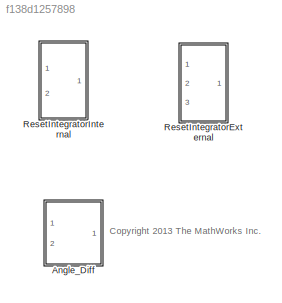
MODEL slx_f138d1257898
KIND library
CONFIG AbsTol = auto
CONFIG FixedStep = auto
CONFIG MaxStep = auto
CONFIG MinStep = auto
CONFIG RelTol = 1e-3
CONFIG SampleTimeConstraint = Unconstrained
CONFIG Solver = ode45
CONFIG SolverMode = Auto
CONFIG SolverName = ode45
CONFIG StartTime = 0.0
CONFIG StopTime = 10.0
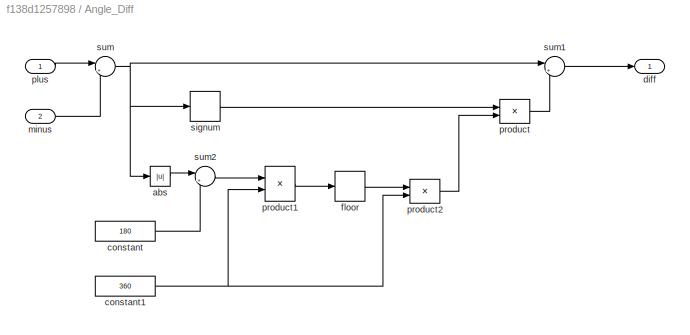
BLOCK [SubSystem] Angle_Diff
  AttributesFormatString = -180 deg to +180 deg range
  Ports = [2, 1]
  RequestExecContextInheritance = off
  Variant = off
BLOCK [Abs] Angle_Diff/abs
  SaturateOnIntegerOverflow = off
  ZeroCross = off
BLOCK [Constant] Angle_Diff/constant
  Value = 180
BLOCK [Constant] Angle_Diff/constant1
  Value = 360
BLOCK [Outport] Angle_Diff/diff
  IconDisplay = Port number
BLOCK [Rounding] Angle_Diff/floor
BLOCK [Inport] Angle_Diff/minus
  IconDisplay = Port number
  OutDataTypeStr = double
  Port = 2
BLOCK [Inport] Angle_Diff/plus
  IconDisplay = Port number
  OutDataTypeStr = double
BLOCK [Product] Angle_Diff/product
  Ports = [2, 1]
  SaturateOnIntegerOverflow = off
BLOCK [Product] Angle_Diff/product1
  Inputs = */
  Ports = [2, 1]
  SaturateOnIntegerOverflow = off
BLOCK [Product] Angle_Diff/product2
  Ports = [2, 1]
  SaturateOnIntegerOverflow = off
BLOCK [Signum] Angle_Diff/signum
  ZeroCross = off
BLOCK [Sum] Angle_Diff/sum
  AccumDataTypeStr = Inherit: Same as first input
  IconShape = round
  Inputs = |+-
  Ports = [2, 1]
  RndMeth = Zero
  SaturateOnIntegerOverflow = off
BLOCK [Sum] Angle_Diff/sum1
  AccumDataTypeStr = Inherit: Same as first input
  IconShape = round
  Inputs = |+-
  Ports = [2, 1]
  RndMeth = Zero
  SaturateOnIntegerOverflow = off
BLOCK [Sum] Angle_Diff/sum2
  AccumDataTypeStr = Inherit: Same as first input
  IconShape = round
  Inputs = |++
  Ports = [2, 1]
  RndMeth = Zero
  SaturateOnIntegerOverflow = off
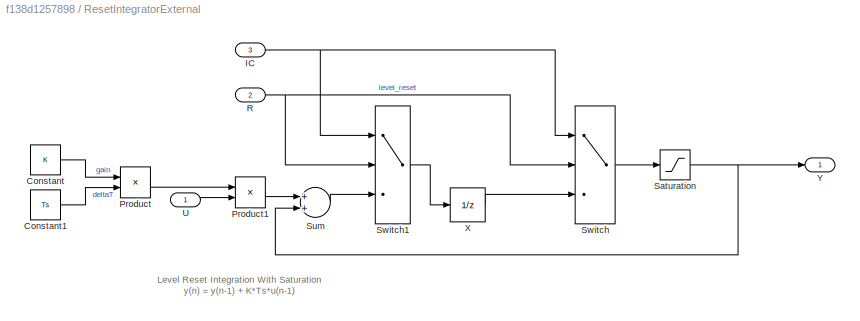
BLOCK [SubSystem] ResetIntegratorExternal
  AttributesFormatString = K = %<K>\n-%<UL> to %<UL>
  Ports = [3, 1]
  RequestExecContextInheritance = off
  Variant = off
BLOCK [Constant] ResetIntegratorExternal/Constant
  Value = K
BLOCK [Constant] ResetIntegratorExternal/Constant1
  Value = Ts
BLOCK [Inport] ResetIntegratorExternal/IC
  IconDisplay = Port number
  Port = 3
BLOCK [Product] ResetIntegratorExternal/Product
  InputSameDT = off
  OutDataTypeStr = Inherit: Inherit via internal rule
  Ports = [2, 1]
  SaturateOnIntegerOverflow = off
BLOCK [Product] ResetIntegratorExternal/Product1
  InputSameDT = off
  OutDataTypeStr = Inherit: Inherit via internal rule
  Ports = [2, 1]
  SaturateOnIntegerOverflow = off
BLOCK [Inport] ResetIntegratorExternal/R
  IconDisplay = Port number
  Port = 2
BLOCK [Saturate] ResetIntegratorExternal/Saturation
  InputPortMap = u0
  LowerLimit = -UL
  Ports = [1, 1]
  UpperLimit = UL
BLOCK [Sum] ResetIntegratorExternal/Sum
  InputSameDT = off
  OutDataTypeStr = Inherit: Inherit via internal rule
  Ports = [2, 1]
  SaturateOnIntegerOverflow = off
BLOCK [Switch] ResetIntegratorExternal/Switch
  Criteria = u2 ~= 0
  InputSameDT = off
  SaturateOnIntegerOverflow = off
BLOCK [Switch] ResetIntegratorExternal/Switch1
  Criteria = u2 ~= 0
  InputSameDT = off
  SaturateOnIntegerOverflow = off
BLOCK [Inport] ResetIntegratorExternal/U
  IconDisplay = Port number
BLOCK [UnitDelay] ResetIntegratorExternal/X
  InputProcessing = Elements as channels (sample based)
  SampleTime = Ts
BLOCK [Outport] ResetIntegratorExternal/Y
  IconDisplay = Port number
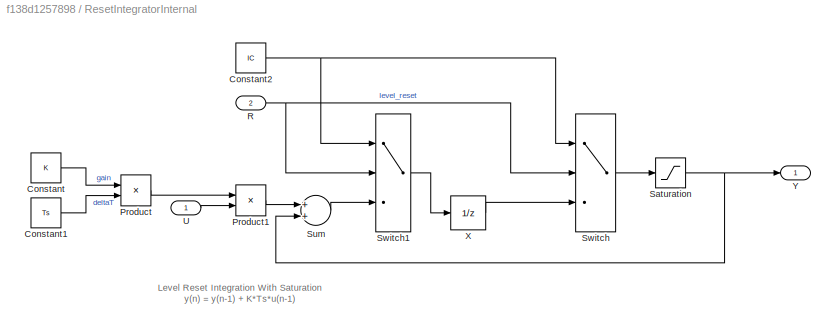
BLOCK [SubSystem] ResetIntegratorInternal
  AttributesFormatString = K =  %<K>\n-%<UL> to %<UL>\nIC = %<IC>
  Ports = [2, 1]
  RequestExecContextInheritance = off
  Variant = off
BLOCK [Constant] ResetIntegratorInternal/Constant
  Value = K
BLOCK [Constant] ResetIntegratorInternal/Constant1
  Value = Ts
BLOCK [Constant] ResetIntegratorInternal/Constant2
  Value = IC
BLOCK [Product] ResetIntegratorInternal/Product
  InputSameDT = off
  OutDataTypeStr = Inherit: Inherit via internal rule
  Ports = [2, 1]
  SaturateOnIntegerOverflow = off
BLOCK [Product] ResetIntegratorInternal/Product1
  InputSameDT = off
  OutDataTypeStr = Inherit: Inherit via internal rule
  Ports = [2, 1]
  SaturateOnIntegerOverflow = off
BLOCK [Inport] ResetIntegratorInternal/R
  IconDisplay = Port number
  Port = 2
BLOCK [Saturate] ResetIntegratorInternal/Saturation
  InputPortMap = u0
  LowerLimit = -UL
  Ports = [1, 1]
  UpperLimit = UL
BLOCK [Sum] ResetIntegratorInternal/Sum
  InputSameDT = off
  OutDataTypeStr = Inherit: Inherit via internal rule
  Ports = [2, 1]
  SaturateOnIntegerOverflow = off
BLOCK [Switch] ResetIntegratorInternal/Switch
  Criteria = u2 ~= 0
  InputSameDT = off
  SaturateOnIntegerOverflow = off
BLOCK [Switch] ResetIntegratorInternal/Switch1
  Criteria = u2 ~= 0
  InputSameDT = off
  SaturateOnIntegerOverflow = off
BLOCK [Inport] ResetIntegratorInternal/U
  IconDisplay = Port number
BLOCK [UnitDelay] ResetIntegratorInternal/X
  InitialCondition = IC
  InputProcessing = Elements as channels (sample based)
  SampleTime = Ts
BLOCK [Outport] ResetIntegratorInternal/Y
  IconDisplay = Port number
ANNOTATION (root): <copyright redacted>
ANNOTATION ResetIntegratorExternal: Level Reset Integration With Saturation y(n) = y(n-1) + K*Ts*u(n-1)
ANNOTATION ResetIntegratorInternal: Level Reset Integration With Saturation y(n) = y(n-1) + K*Ts*u(n-1)
LINE Angle_Diff/abs:1 -> Angle_Diff/sum2:1
NET Angle_Diff/constant1:1 -> Angle_Diff/product1:2, Angle_Diff/product2:2
LINE Angle_Diff/constant:1 -> Angle_Diff/sum2:2
LINE Angle_Diff/floor:1 -> Angle_Diff/product2:1
LINE Angle_Diff/minus:1 -> Angle_Diff/sum:2
LINE Angle_Diff/plus:1 -> Angle_Diff/sum:1
LINE Angle_Diff/product1:1 -> Angle_Diff/floor:1
LINE Angle_Diff/product2:1 -> Angle_Diff/product:2
LINE Angle_Diff/product:1 -> Angle_Diff/sum1:2
LINE Angle_Diff/signum:1 -> Angle_Diff/product:1
LINE Angle_Diff/sum1:1 -> Angle_Diff/diff:1
LINE Angle_Diff/sum2:1 -> Angle_Diff/product1:1
NET Angle_Diff/sum:1 -> Angle_Diff/abs:1, Angle_Diff/signum:1, Angle_Diff/sum1:1
LINE ResetIntegratorExternal/Constant1:1 -> ResetIntegratorExternal/Product:2
LINE ResetIntegratorExternal/Constant:1 -> ResetIntegratorExternal/Product:1
NET ResetIntegratorExternal/IC:1 -> ResetIntegratorExternal/Switch1:1, ResetIntegratorExternal/Switch:1
LINE ResetIntegratorExternal/Product1:1 -> ResetIntegratorExternal/Sum:1
LINE ResetIntegratorExternal/Product:1 -> ResetIntegratorExternal/Product1:1
NET ResetIntegratorExternal/R:1 -> ResetIntegratorExternal/Switch1:2, ResetIntegratorExternal/Switch:2
NET ResetIntegratorExternal/Saturation:1 -> ResetIntegratorExternal/Sum:2, ResetIntegratorExternal/Y:1
LINE ResetIntegratorExternal/Sum:1 -> ResetIntegratorExternal/Switch1:3
LINE ResetIntegratorExternal/Switch1:1 -> ResetIntegratorExternal/X:1
LINE ResetIntegratorExternal/Switch:1 -> ResetIntegratorExternal/Saturation:1
LINE ResetIntegratorExternal/U:1 -> ResetIntegratorExternal/Product1:2
LINE ResetIntegratorExternal/X:1 -> ResetIntegratorExternal/Switch:3
LINE ResetIntegratorInternal/Constant1:1 -> ResetIntegratorInternal/Product:2
NET ResetIntegratorInternal/Constant2:1 -> ResetIntegratorInternal/Switch1:1, ResetIntegratorInternal/Switch:1
LINE ResetIntegratorInternal/Constant:1 -> ResetIntegratorInternal/Product:1
LINE ResetIntegratorInternal/Product1:1 -> ResetIntegratorInternal/Sum:1
LINE ResetIntegratorInternal/Product:1 -> ResetIntegratorInternal/Product1:1
NET ResetIntegratorInternal/R:1 -> ResetIntegratorInternal/Switch1:2, ResetIntegratorInternal/Switch:2
NET ResetIntegratorInternal/Saturation:1 -> ResetIntegratorInternal/Sum:2, ResetIntegratorInternal/Y:1
LINE ResetIntegratorInternal/Sum:1 -> ResetIntegratorInternal/Switch1:3
LINE ResetIntegratorInternal/Switch1:1 -> ResetIntegratorInternal/X:1
LINE ResetIntegratorInternal/Switch:1 -> ResetIntegratorInternal/Saturation:1
LINE ResetIntegratorInternal/U:1 -> ResetIntegratorInternal/Product1:2
LINE ResetIntegratorInternal/X:1 -> ResetIntegratorInternal/Switch:3
note: NET lines group one-source signal fan-out (src -> all destinations, sorted); 1:1 wires keep LINE
